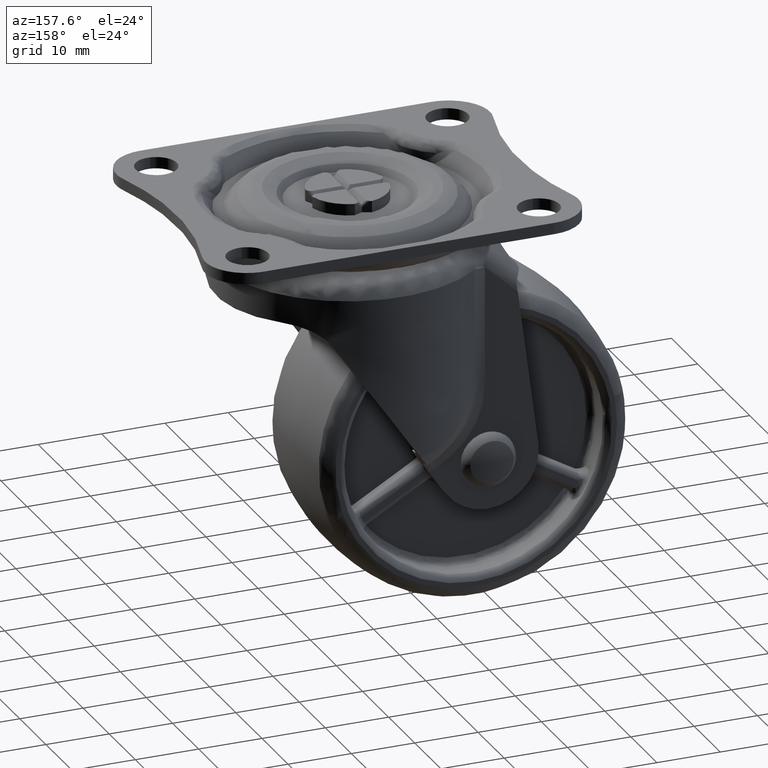
[diagram: clean part render]
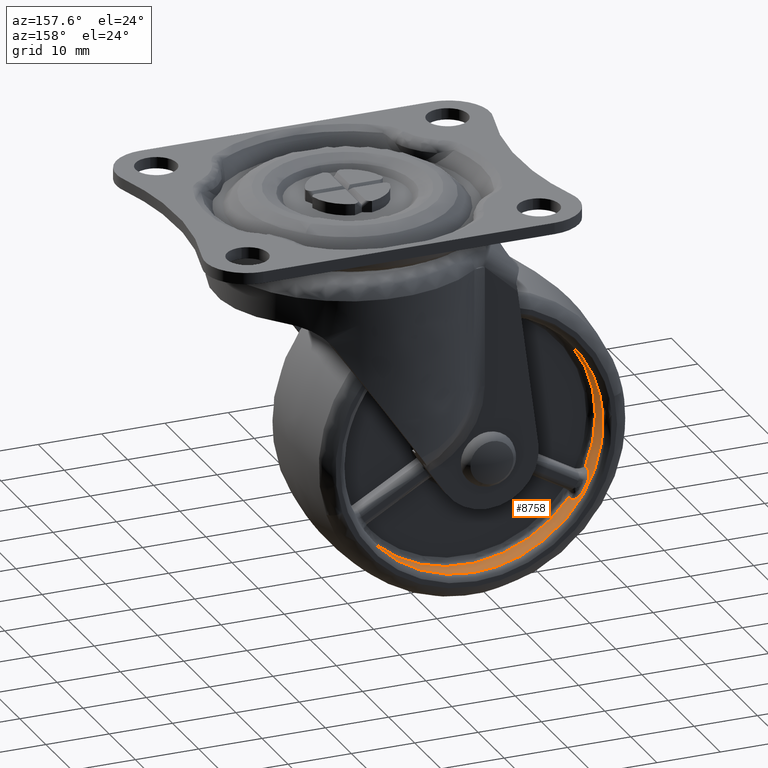
[diagram: same view with one face highlighted and labeled with its STEP entity id]
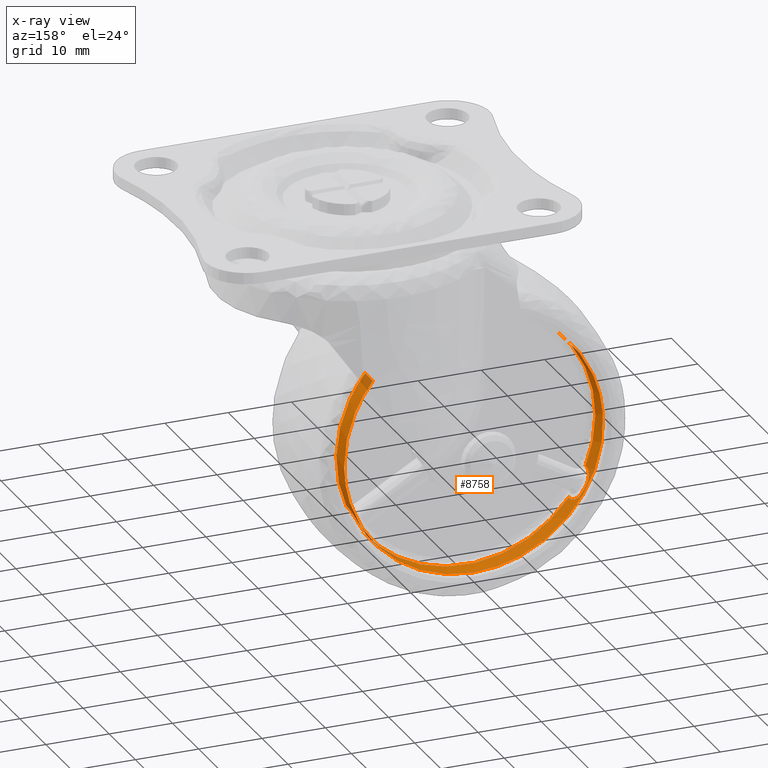
[diagram: x-ray of the same camera — body ghosted, the highlighted face saturated]
A machine part, auxiliary view. The second image highlights one B-rep face of the part: STEP entity #8758.
The next image is the same camera in x-ray: the body ghosted, the highlighted face saturated — about 3% of this face is hidden behind the body in this view.
In plain terms, the highlighted face is a freeform B-spline surface patch.
Its self-contained STEP definition (entity closure, byte-faithful):
#8419=CARTESIAN_POINT('',(-13.750354715929639,9.575000003047506,15.137050111765920));
#8420=CARTESIAN_POINT('',(-28.045080058926210,9.575000003047506,2.151855335921904));
#8421=CARTESIAN_POINT('',(-15.898687854300711,9.575000003047506,-12.862125229195669));
#8422=CARTESIAN_POINT('',(-3.036562625105042,9.575000003047506,-28.760813083496380));
#8423=CARTESIAN_POINT('',(12.862125229195669,9.575000003047506,-15.898687854300711));
#8424=CARTESIAN_POINT('',(28.760813083496380,9.575000003047506,-3.036562625105040));
#8425=CARTESIAN_POINT('',(15.898687854300711,9.575000003047506,12.862125229195669));
#8426=CARTESIAN_POINT('',(-13.750354715929639,6.423124999923812,15.137050111765920));
#8427=CARTESIAN_POINT('',(-28.045080058926210,6.423124999923812,2.151855335921904));
#8428=CARTESIAN_POINT('',(-15.898687854300711,6.423124999923811,-12.862125229195669));
#8429=CARTESIAN_POINT('',(-3.036562625105042,6.423124999923811,-28.760813083496380));
#8430=CARTESIAN_POINT('',(12.862125229195669,6.423124999923811,-15.898687854300711));
#8431=CARTESIAN_POINT('',(28.760813083496380,6.423124999923811,-3.036562625105040));
#8432=CARTESIAN_POINT('',(15.898687854300711,6.423124999923811,12.862125229195669));
#8440=(BOUNDED_SURFACE()B_SPLINE_SURFACE(2,1,((#8419,#8426),(#8420,#8427),(#8421,#8428),(#8422,#8429),(#8423,#8430),(#8424,#8431),(#8425,#8432)),.UNSPECIFIED.,.F.,.F.,.U.)B_SPLINE_SURFACE_WITH_KNOTS((3,2,2,3),(2,2),(0.0,32.527364216614480,66.410035275587902,100.292706334561300),(0.0,3.151875003123696),.UNSPECIFIED.)GEOMETRIC_REPRESENTATION_ITEM()RATIONAL_B_SPLINE_SURFACE(((0.977505800795127,0.977505800795127),(0.718822509939086,0.718822509939086),(1.0,1.0),(0.707106781186548,0.707106781186548),(1.0,1.0),(0.707106781186548,0.707106781186548),(1.0,1.0)))REPRESENTATION_ITEM('')SURFACE());
#8441=CARTESIAN_POINT('',(-13.750354581421581,9.500000000815927,15.137050233947690));
#8442=VERTEX_POINT('',#8441);
#8443=CARTESIAN_POINT('',(-20.400219027600329,9.500000002921276,1.426045064482339));
#8444=VERTEX_POINT('',#8443);
#8445=CARTESIAN_POINT('',(-13.750354581421583,9.500000000815929,15.137050233947692));
#8446=CARTESIAN_POINT('',(-19.827680723367575,9.500000001663574,9.616464216504003));
#8447=CARTESIAN_POINT('',(-20.400219027600333,9.500000002921276,1.426045064482339));
#8455=(BOUNDED_CURVE()B_SPLINE_CURVE(2,(#8445,#8446,#8447),.UNSPECIFIED.,.F.,.U.)B_SPLINE_CURVE_WITH_KNOTS((3,3),(0.617761002347248,0.737833686534608),.UNSPECIFIED.)CURVE()GEOMETRIC_REPRESENTATION_ITEM()RATIONAL_B_SPLINE_CURVE((0.854044542875899,0.845897838629195,0.972879876385952))REPRESENTATION_ITEM(''));
#8456=EDGE_CURVE('',#8442,#8444,#8455,.T.);
#8457=ORIENTED_EDGE('',*,*,#8456,.F.);
#8458=CARTESIAN_POINT('',(-13.750359244904329,6.499999999999999,15.137045997685201));
#8459=VERTEX_POINT('',#8458);
#8460=CARTESIAN_POINT('',(-13.750354581421581,9.500000000815927,15.137050233947690));
#8461=CARTESIAN_POINT('',(-13.750359244904329,6.499999999999999,15.137045997685201));
#8462=QUASI_UNIFORM_CURVE('',1,(#8460,#8461),.UNSPECIFIED.,.F.,.U.);
#8463=EDGE_CURVE('',#8442,#8459,#8462,.T.);
#8464=ORIENTED_EDGE('',*,*,#8463,.T.);
#8465=CARTESIAN_POINT('',(-18.877583458162349,6.500000000000000,-7.863802113489131));
#8466=VERTEX_POINT('',#8465);
#8467=CARTESIAN_POINT('',(-13.750359244904329,6.499999999999999,15.137045997685203));
#8468=CARTESIAN_POINT('',(-16.113755047082076,6.500000000000001,12.990158069697557));
#8469=CARTESIAN_POINT('',(-17.710217990778780,6.500000000000000,10.225004626849641));
#8470=CARTESIAN_POINT('',(-22.765403743665974,6.500000000000000,1.469170773002720));
#8471=CARTESIAN_POINT('',(-18.877583458162349,6.500000000000000,-7.863802113489129));
#8479=(BOUNDED_CURVE()B_SPLINE_CURVE(2,(#8467,#8468,#8469,#8470,#8471),.UNSPECIFIED.,.F.,.U.)B_SPLINE_CURVE_WITH_KNOTS((3,2,3),(0.330053571922314,0.500000000000000,1.0),.UNSPECIFIED.)CURVE()GEOMETRIC_REPRESENTATION_ITEM()RATIONAL_B_SPLINE_CURVE((0.953524053195267,0.964796664270254,1.0,0.896428138773078,1.0))REPRESENTATION_ITEM(''));
#8480=EDGE_CURVE('',#8459,#8466,#8479,.T.);
#8481=ORIENTED_EDGE('',*,*,#8480,.T.);
#8482=CARTESIAN_POINT('',(-18.877583458162349,7.0,-7.863802113489131));
#8483=VERTEX_POINT('',#8482);
#8484=CARTESIAN_POINT('',(-18.877583458162349,6.500000000000000,-7.863802113489131));
#8485=CARTESIAN_POINT('',(-18.877583458162349,7.0,-7.863802113489131));
#8486=QUASI_UNIFORM_CURVE('',1,(#8484,#8485),.UNSPECIFIED.,.F.,.U.);
#8487=EDGE_CURVE('',#8466,#8483,#8486,.T.);
#8488=ORIENTED_EDGE('',*,*,#8487,.T.);
#8489=CARTESIAN_POINT('',(-17.967223237728650,9.0,-9.766341691013269));
#8490=VERTEX_POINT('',#8489);
#8491=CARTESIAN_POINT('',(-18.877583458162349,7.0,-7.863802113489131));
#8492=CARTESIAN_POINT('',(-18.877583458162359,7.135772272717576,-7.863802113489134));
#8493=CARTESIAN_POINT('',(-18.872017891362290,7.269833924396749,-7.877201999931253));
#8494=CARTESIAN_POINT('',(-18.855318406736860,7.468398351319513,-7.917052236500394));
#8495=CARTESIAN_POINT('',(-18.848365306855829,7.533779858837181,-7.933606517860996));
#8496=CARTESIAN_POINT('',(-18.831934976528011,7.661157066372635,-7.972528592658308));
#8497=CARTESIAN_POINT('',(-18.812934796587790,7.785718099639228,-8.017373211709769));
#8498=CARTESIAN_POINT('',(-18.788793019796579,7.904784342977452,-8.073719168785493));
#8499=CARTESIAN_POINT('',(-18.761989795069269,8.021089509196456,-8.135811163423567));
#8500=CARTESIAN_POINT('',(-18.747161798886989,8.078151624270602,-8.169947165331168));
#8501=CARTESIAN_POINT('',(-18.699441603645379,8.241739541872439,-8.278871288023069));
#8502=CARTESIAN_POINT('',(-18.663250943261250,8.341485515768511,-8.360341747955154));
#8503=CARTESIAN_POINT('',(-18.602178424617069,8.477819381876483,-8.494935315359824));
#8504=CARTESIAN_POINT('',(-18.580681832231878,8.521032846619779,-8.541880614846891));
#8505=CARTESIAN_POINT('',(-18.535273647295860,8.602911981873792,-8.639970637032775));
#8506=CARTESIAN_POINT('',(-18.511708314628869,8.640949326009585,-8.690365570212041));
#8507=CARTESIAN_POINT('',(-18.438512921642111,8.746601296040968,-8.845157568846860));
#8508=CARTESIAN_POINT('',(-18.386361821651320,8.805904084122794,-8.953215040285514));
#8509=CARTESIAN_POINT('',(-18.302722484103619,8.878306587658496,-9.122326758752747));
#8510=CARTESIAN_POINT('',(-18.273822233023971,8.899706467147210,-9.180096202951555));
#8511=CARTESIAN_POINT('',(-18.215240258024899,8.936121941150745,-9.295793007701699));
#8512=CARTESIAN_POINT('',(-18.185451454775102,8.951255678828654,-9.353941860334631));
#8513=CARTESIAN_POINT('',(-18.094570400185301,8.987654191753530,-9.529238746864488));
#8514=CARTESIAN_POINT('',(-18.031970539033640,9.000000000000004,-9.647225521070366));
#8515=CARTESIAN_POINT('',(-17.967223237728650,9.0,-9.766341691013269));
#8516=B_SPLINE_CURVE_WITH_KNOTS('',3,(#8491,#8492,#8493,#8494,#8495,#8496,#8497,#8498,#8499,#8500,#8501,#8502,#8503,#8504,#8505,#8506,#8507,#8508,#8509,#8510,#8511,#8512,#8513,#8514,#8515),.UNSPECIFIED.,.F.,.U.,(4,2,2,1,2,2,2,2,2,2,2,2,4),(0.0,0.124999999999999,0.187499999999999,0.249999999999999,0.312499999999999,0.374999999999999,0.500000000000000,0.562500000000000,0.625000000000000,0.750000000000000,0.812500000000000,0.875000000000000,1.0),.UNSPECIFIED.);
#8517=EDGE_CURVE('',#8483,#8490,#8516,.T.);
#8518=ORIENTED_EDGE('',*,*,#8517,.T.);
#8519=CARTESIAN_POINT('',(-17.441516605756998,9.0,-10.676892777915439));
#8520=VERTEX_POINT('',#8519);
#8521=CARTESIAN_POINT('',(-17.967223237728660,9.0,-9.766341691013274));
#8522=CARTESIAN_POINT('',(-17.716077529603545,9.0,-10.228376621373496));
#8523=CARTESIAN_POINT('',(-17.441516605757020,9.0,-10.676892777915461));
#8531=(BOUNDED_CURVE()B_SPLINE_CURVE(2,(#8521,#8522,#8523),.UNSPECIFIED.,.F.,.U.)CURVE()GEOMETRIC_REPRESENTATION_ITEM()QUASI_UNIFORM_CURVE()RATIONAL_B_SPLINE_CURVE((1.0,0.999669522141302,1.0))REPRESENTATION_ITEM(''));
#8532=EDGE_CURVE('',#8490,#8520,#8531,.T.);
#8533=ORIENTED_EDGE('',*,*,#8532,.T.);
#8534=CARTESIAN_POINT('',(-16.249049916331199,7.0,-12.416558207352701));
#8535=VERTEX_POINT('',#8534);
#8536=CARTESIAN_POINT('',(-17.441516605756998,9.0,-10.676892777915439));
#8537=CARTESIAN_POINT('',(-17.370725969719309,9.000000000000004,-10.792534667336451));
#8538=CARTESIAN_POINT('',(-17.299486484840660,8.987650936607944,-10.906327549214691));
#8539=CARTESIAN_POINT('',(-17.192047864761228,8.950702390752683,-11.074314841255219));
#8540=CARTESIAN_POINT('',(-17.156137511680750,8.935258815261538,-11.129855088992031));
#8541=CARTESIAN_POINT('',(-17.085355323124869,8.898695642043579,-11.238209915472730));
#8542=CARTESIAN_POINT('',(-17.015307561772460,8.856368253515299,-11.344317804451959));
#8543=CARTESIAN_POINT('',(-16.946814675769851,8.802601106233652,-11.446031304845670));
#8544=CARTESIAN_POINT('',(-16.879176349354971,8.742996275430265,-11.545543125109850));
#8545=CARTESIAN_POINT('',(-16.845661481789790,8.710139932669158,-11.594375324950351));
#8546=CARTESIAN_POINT('',(-16.747420243209952,8.603308377317669,-11.736255460614901));
#8547=CARTESIAN_POINT('',(-16.685895005751458,8.522264153862670,-11.823414135040160));
#8548=CARTESIAN_POINT('',(-16.600023268346529,8.385997326013314,-11.943374173710790));
#8549=CARTESIAN_POINT('',(-16.572476174475369,8.338107922328330,-11.981552045395240));
#8550=CARTESIAN_POINT('',(-16.532905761608379,8.262410866875904,-12.036032225999330));
#8551=CARTESIAN_POINT('',(-16.519975476226740,8.236461085702930,-12.053771180472650));
#8552=CARTESIAN_POINT('',(-16.494974360694531,8.183758557946755,-12.087961376773020));
#8553=CARTESIAN_POINT('',(-16.482884340339169,8.156976075000971,-12.104439392540730));
#8554=CARTESIAN_POINT('',(-16.424490700989779,8.020930049409921,-12.183794920629730));
#8555=CARTESIAN_POINT('',(-16.384298002892240,7.905329537405959,-12.237661901982509));
#8556=CARTESIAN_POINT('',(-16.342844995678028,7.752095640480200,-12.292849503193869));
#8557=CARTESIAN_POINT('',(-16.334997550681489,7.721008129033955,-12.303273811767410));
#8558=CARTESIAN_POINT('',(-16.320221120925009,7.657927347104997,-12.322867930486209));
#8559=CARTESIAN_POINT('',(-16.313297529095070,7.625937090130941,-12.332030496106951));
#8560=CARTESIAN_POINT('',(-16.294179011133789,7.529783299147079,-12.357294095872509));
#8561=CARTESIAN_POINT('',(-16.283537009452640,7.465047353139132,-12.371304013497580));
#8562=CARTESIAN_POINT('',(-16.257871275554891,7.268973567051916,-12.405037727385819));
#8563=CARTESIAN_POINT('',(-16.249049916331199,7.135789323222138,-12.416558207352701));
#8564=CARTESIAN_POINT('',(-16.249049916331199,7.0,-12.416558207352701));
#8565=B_SPLINE_CURVE_WITH_KNOTS('',3,(#8536,#8537,#8538,#8539,#8540,#8541,#8542,#8543,#8544,#8545,#8546,#8547,#8548,#8549,#8550,#8551,#8552,#8553,#8554,#8555,#8556,#8557,#8558,#8559,#8560,#8561,#8562,#8563,#8564),.UNSPECIFIED.,.F.,.U.,(4,2,2,1,2,2,2,2,2,2,2,2,2,2,4),(0.0,0.124999999999999,0.187500000000000,0.250000000000000,0.312500000000001,0.375000000000001,0.500000000000004,0.562500000000005,0.593750000000006,0.625000000000007,0.750000000000008,0.781250000000007,0.812500000000006,0.875000000000004,1.0),.UNSPECIFIED.);
#8566=EDGE_CURVE('',#8520,#8535,#8565,.T.);
#8567=ORIENTED_EDGE('',*,*,#8566,.T.);
#8568=CARTESIAN_POINT('',(-16.249049916331199,6.500000000000000,-12.416558207352701));
#8569=VERTEX_POINT('',#8568);
#8570=CARTESIAN_POINT('',(-16.249049916331199,7.0,-12.416558207352701));
#8571=CARTESIAN_POINT('',(-16.249049916331199,6.500000000000000,-12.416558207352701));
#8572=QUASI_UNIFORM_CURVE('',1,(#8570,#8571),.UNSPECIFIED.,.F.,.U.);
#8573=EDGE_CURVE('',#8535,#8569,#8572,.T.);
#8574=ORIENTED_EDGE('',*,*,#8573,.T.);
#8575=CARTESIAN_POINT('',(16.249044129696500,6.500000000000000,-12.416565780084920));
#8576=VERTEX_POINT('',#8575);
#8577=CARTESIAN_POINT('',(-16.249049916331199,6.500000000000000,-12.416558207352709));
#8578=CARTESIAN_POINT('',(-10.110372190466643,6.500000000000000,-20.449998644073425));
#8579=CARTESIAN_POINT('',(-0.000004765275816,6.500000000000000,-20.450000999999439));
#8580=CARTESIAN_POINT('',(10.110362659915010,6.500000000000000,-20.450003355925464));
#8581=CARTESIAN_POINT('',(16.249044129696511,6.500000000000000,-12.416565780084930));
#8589=(BOUNDED_CURVE()B_SPLINE_CURVE(2,(#8577,#8578,#8579,#8580,#8581),.UNSPECIFIED.,.F.,.U.)B_SPLINE_CURVE_WITH_KNOTS((3,2,3),(0.0,0.500000000000000,1.0),.UNSPECIFIED.)CURVE()GEOMETRIC_REPRESENTATION_ITEM()RATIONAL_B_SPLINE_CURVE((1.0,0.896428138773078,1.0,0.896428138773078,1.0))REPRESENTATION_ITEM(''));
#8590=EDGE_CURVE('',#8569,#8576,#8589,.T.);
#8591=ORIENTED_EDGE('',*,*,#8590,.T.);
#8592=CARTESIAN_POINT('',(16.249044129696500,7.0,-12.416565780084920));
#8593=VERTEX_POINT('',#8592);
#8594=CARTESIAN_POINT('',(16.249044129696500,6.500000000000000,-12.416565780084920));
#8595=CARTESIAN_POINT('',(16.249044129696500,7.0,-12.416565780084920));
#8596=QUASI_UNIFORM_CURVE('',1,(#8594,#8595),.UNSPECIFIED.,.F.,.U.);
#8597=EDGE_CURVE('',#8576,#8593,#8596,.T.);
#8598=ORIENTED_EDGE('',*,*,#8597,.T.);
#8599=CARTESIAN_POINT('',(17.441511625320899,9.0,-10.676900913832480));
#8600=VERTEX_POINT('',#8599);
#8601=CARTESIAN_POINT('',(16.249044129696500,7.0,-12.416565780084920));
#8602=CARTESIAN_POINT('',(16.249044129696500,7.135772272717574,-12.416565780084920));
#8603=CARTESIAN_POINT('',(16.257865988363189,7.269833924396747,-12.405045914628561));
#8604=CARTESIAN_POINT('',(16.284027563266172,7.468398351319513,-12.370658618428260));
#8605=CARTESIAN_POINT('',(16.294887441525340,7.533779858837182,-12.356359916615940));
#8606=CARTESIAN_POINT('',(16.320379781903888,7.661157066372632,-12.322669795760810));
#8607=CARTESIAN_POINT('',(16.349716523794289,7.785717979134737,-12.283792691795011));
#8608=CARTESIAN_POINT('',(16.386442413087899,7.904784342977457,-12.234712477198830));
#8609=CARTESIAN_POINT('',(16.426814045452470,8.021089509196457,-12.180454206362599));
#8610=CARTESIAN_POINT('',(16.448962692196940,8.078151624270603,-12.150544784027730));
#8611=CARTESIAN_POINT('',(16.519433651912259,8.241739541872441,-12.054755821328991));
#8612=CARTESIAN_POINT('',(16.571893809679370,8.341485515768518,-11.982678560090550));
#8613=CARTESIAN_POINT('',(16.657918998915711,8.477819381876486,-11.862491423769271));
#8614=CARTESIAN_POINT('',(16.687826524667180,8.521032846619780,-11.820402178925351));
#8615=CARTESIAN_POINT('',(16.750070883269931,8.602911981873794,-11.732032526138079));
#8616=CARTESIAN_POINT('',(16.781931509291692,8.640949326009581,-11.686426882810199));
#8617=CARTESIAN_POINT('',(16.879387615918631,8.746601296040970,-11.545641813726270));
#8618=CARTESIAN_POINT('',(16.946892581257831,8.805904084122794,-11.446448900579620));
#8619=CARTESIAN_POINT('',(17.051527956754249,8.878306587658496,-11.289459250273991));
#8620=CARTESIAN_POINT('',(17.087107637453091,8.899706467147210,-11.235546176563870));
#8621=CARTESIAN_POINT('',(17.158013022003878,8.936121941150747,-11.126964295635741));
#8622=CARTESIAN_POINT('',(17.193477003960009,8.951255678828655,-11.072092008956600));
#8623=CARTESIAN_POINT('',(17.299848033604281,8.987654191753524,-10.905738263694181));
#8624=CARTESIAN_POINT('',(17.370727646801331,8.999999999999998,-10.792531806560540));
#8625=CARTESIAN_POINT('',(17.441511625320899,9.0,-10.676900913832480));
#8626=B_SPLINE_CURVE_WITH_KNOTS('',3,(#8601,#8602,#8603,#8604,#8605,#8606,#8607,#8608,#8609,#8610,#8611,#8612,#8613,#8614,#8615,#8616,#8617,#8618,#8619,#8620,#8621,#8622,#8623,#8624,#8625),.UNSPECIFIED.,.F.,.U.,(4,2,2,1,2,2,2,2,2,2,2,2,4),(0.0,0.125000000000002,0.187500000000003,0.250000000000004,0.312500000000005,0.375000000000005,0.500000000000006,0.562500000000005,0.625000000000005,0.750000000000005,0.812500000000003,0.875000000000002,1.0),.UNSPECIFIED.);
#8627=EDGE_CURVE('',#8593,#8600,#8626,.T.);
#8628=ORIENTED_EDGE('',*,*,#8627,.T.);
#8629=CARTESIAN_POINT('',(17.967218682035899,9.0,-9.766350072156000));
#8630=VERTEX_POINT('',#8629);
#8631=CARTESIAN_POINT('',(17.441511625320899,9.0,-10.676900913832490));
#8632=CARTESIAN_POINT('',(17.716072758386066,9.0,-10.228384885364591));
#8633=CARTESIAN_POINT('',(17.967218682035892,9.0,-9.766350072155989));
#8641=(BOUNDED_CURVE()B_SPLINE_CURVE(2,(#8631,#8632,#8633),.UNSPECIFIED.,.F.,.U.)CURVE()GEOMETRIC_REPRESENTATION_ITEM()QUASI_UNIFORM_CURVE()RATIONAL_B_SPLINE_CURVE((1.0,0.999669522141302,1.0))REPRESENTATION_ITEM(''));
#8642=EDGE_CURVE('',#8600,#8630,#8641,.T.);
#8643=ORIENTED_EDGE('',*,*,#8642,.T.);
#8644=CARTESIAN_POINT('',(18.877579793301202,7.0,-7.863810911227899));
#8645=VERTEX_POINT('',#8644);
#8646=CARTESIAN_POINT('',(17.967218682035899,9.0,-9.766350072156000));
#8647=CARTESIAN_POINT('',(18.031972177997279,9.000000000000002,-9.647222638286785));
#8648=CARTESIAN_POINT('',(18.094899962034329,8.987650936607942,-9.528630993690236));
#8649=CARTESIAN_POINT('',(18.186661914414650,8.950702390752680,-9.351592773333634));
#8650=CARTESIAN_POINT('',(18.216806003346981,8.935258815261532,-9.292723371438671));
#8651=CARTESIAN_POINT('',(18.275252941423989,8.898695642043576,-9.177246784773471));
#8652=CARTESIAN_POINT('',(18.332121131757908,8.856368431732333,-9.063529593099236));
#8653=CARTESIAN_POINT('',(18.385961220393209,8.802601106233649,-8.953356370020817));
#8654=CARTESIAN_POINT('',(18.438321821511380,8.742996275430260,-8.845023950943972));
#8655=CARTESIAN_POINT('',(18.463854313313341,8.710139932669154,-8.791583124307808));
#8656=CARTESIAN_POINT('',(18.537605495801319,8.603308377317664,-8.635563648166139));
#8657=CARTESIAN_POINT('',(18.582324503284511,8.522264153862670,-8.538701892340596));
#8658=CARTESIAN_POINT('',(18.643277075509779,8.385997326013314,-8.404354766945502));
#8659=CARTESIAN_POINT('',(18.662566535315381,8.338107922328328,-8.361409348010424));
#8660=CARTESIAN_POINT('',(18.689962549287770,8.262410866875904,-8.299900274927326));
#8661=CARTESIAN_POINT('',(18.698859791807429,8.236461085702921,-8.279832842071983));
#8662=CARTESIAN_POINT('',(18.715968812597819,8.183758557946748,-8.241086142747953));
#8663=CARTESIAN_POINT('',(18.724194182678929,8.156976075000966,-8.222376870104082));
#8664=CARTESIAN_POINT('',(18.763721266260038,8.020930049409918,-8.132128730963581));
#8665=CARTESIAN_POINT('',(18.790275091487970,7.905329537405957,-8.070387342688090));
#8666=CARTESIAN_POINT('',(18.817342452503819,7.752095640480199,-8.006894184771648));
#8667=CARTESIAN_POINT('',(18.822446446047120,7.721008129033953,-7.994885943763070));
#8668=CARTESIAN_POINT('',(18.832027235744128,7.657927347104993,-7.972292120857323));
#8669=CARTESIAN_POINT('',(18.836500454420559,7.625937090130941,-7.961714831636794));
#8670=CARTESIAN_POINT('',(18.848820114627930,7.529783299147076,-7.932525909516827));
#8671=CARTESIAN_POINT('',(18.855632058355610,7.465047353139132,-7.916304706901300));
#8672=CARTESIAN_POINT('',(18.872013444597929,7.268973567051916,-7.877210672394964));
#8673=CARTESIAN_POINT('',(18.877579793301202,7.135789323222134,-7.863810911227896));
#8674=CARTESIAN_POINT('',(18.877579793301202,7.0,-7.863810911227899));
#8675=B_SPLINE_CURVE_WITH_KNOTS('',3,(#8646,#8647,#8648,#8649,#8650,#8651,#8652,#8653,#8654,#8655,#8656,#8657,#8658,#8659,#8660,#8661,#8662,#8663,#8664,#8665,#8666,#8667,#8668,#8669,#8670,#8671,#8672,#8673,#8674),.UNSPECIFIED.,.F.,.U.,(4,2,2,1,2,2,2,2,2,2,2,2,2,2,4),(0.0,0.124999999999998,0.187499999999996,0.249999999999995,0.312499999999994,0.374999999999992,0.499999999999989,0.562499999999988,0.593749999999988,0.624999999999988,0.749999999999990,0.781249999999991,0.812499999999992,0.874999999999995,1.0),.UNSPECIFIED.);
#8676=EDGE_CURVE('',#8630,#8645,#8675,.T.);
#8677=ORIENTED_EDGE('',*,*,#8676,.T.);
#8678=CARTESIAN_POINT('',(18.877579793301202,6.500000000000000,-7.863810911227899));
#8679=VERTEX_POINT('',#8678);
#8680=CARTESIAN_POINT('',(18.877579793301202,7.0,-7.863810911227899));
#8681=CARTESIAN_POINT('',(18.877579793301202,6.500000000000000,-7.863810911227899));
#8682=QUASI_UNIFORM_CURVE('',1,(#8680,#8681),.UNSPECIFIED.,.F.,.U.);
#8683=EDGE_CURVE('',#8645,#8679,#8682,.T.);
#8684=ORIENTED_EDGE('',*,*,#8683,.T.);
#8685=CARTESIAN_POINT('',(15.898688046611900,6.500000000000000,12.862124991482590));
#8686=VERTEX_POINT('',#8685);
#8687=CARTESIAN_POINT('',(18.877579793301209,6.500000000000000,-7.863810911227901));
#8688=CARTESIAN_POINT('',(22.765404428358238,6.500000000000001,1.469160163376857));
#8689=CARTESIAN_POINT('',(17.710222756054609,6.500000000000000,10.224996373149800));
#8690=CARTESIAN_POINT('',(16.907916839882660,6.500000000000000,11.614631730988906));
#8691=CARTESIAN_POINT('',(15.898688046611896,6.500000000000000,12.862124991482586));
#8699=(BOUNDED_CURVE()B_SPLINE_CURVE(2,(#8687,#8688,#8689,#8690,#8691),.UNSPECIFIED.,.F.,.U.)B_SPLINE_CURVE_WITH_KNOTS((3,2,3),(0.0,0.500000000000000,0.586929304451149),.UNSPECIFIED.)CURVE()GEOMETRIC_REPRESENTATION_ITEM()RATIONAL_B_SPLINE_CURVE((1.0,0.896428138773078,1.0,0.981993140285665,0.970247575732597))REPRESENTATION_ITEM(''));
#8700=EDGE_CURVE('',#8679,#8686,#8699,.T.);
#8701=ORIENTED_EDGE('',*,*,#8700,.T.);
#8702=CARTESIAN_POINT('',(15.898688552261310,9.500000000000007,12.862124366456539));
#8703=VERTEX_POINT('',#8702);
#8704=CARTESIAN_POINT('',(15.898688552261310,9.500000000000007,12.862124366456539));
#8705=CARTESIAN_POINT('',(15.898688046611900,6.500000000000000,12.862124991482590));
#8706=QUASI_UNIFORM_CURVE('',1,(#8704,#8705),.UNSPECIFIED.,.F.,.U.);
#8707=EDGE_CURVE('',#8703,#8686,#8706,.T.);
#8708=ORIENTED_EDGE('',*,*,#8707,.F.);
#8709=CARTESIAN_POINT('',(20.448386353887809,9.500000002973177,-0.256975528282259));
#8710=VERTEX_POINT('',#8709);
#8711=CARTESIAN_POINT('',(20.448386353887805,9.500000002973177,-0.256975528282259));
#8712=CARTESIAN_POINT('',(20.450000999999993,9.499999999999998,-0.128492836819083));
#8713=CARTESIAN_POINT('',(20.450001000000000,9.500000000000000,1.224606E-015));
#8714=CARTESIAN_POINT('',(20.450000999999997,9.500000000000000,7.236311938508313));
#8715=CARTESIAN_POINT('',(15.898688552261330,9.500000000000000,12.862124366456559));
#8723=(BOUNDED_CURVE()B_SPLINE_CURVE(2,(#8711,#8712,#8713,#8714,#8715),.UNSPECIFIED.,.F.,.U.)B_SPLINE_CURVE_WITH_KNOTS((3,2,3),(0.247784295919980,0.250000000000000,0.359113370906853),.UNSPECIFIED.)CURVE()GEOMETRIC_REPRESENTATION_ITEM()RATIONAL_B_SPLINE_CURVE((0.994854295639988,0.997404141200259,1.0,0.872165734318022,0.855918889803748))REPRESENTATION_ITEM(''));
#8724=EDGE_CURVE('',#8710,#8703,#8723,.T.);
#8725=ORIENTED_EDGE('',*,*,#8724,.F.);
#8726=CARTESIAN_POINT('',(0.0,9.500000000000000,-20.450001000000000));
#8727=VERTEX_POINT('',#8726);
#8728=CARTESIAN_POINT('',(0.0,9.500000000000000,-20.450001000000000));
#8729=CARTESIAN_POINT('',(20.194619953915691,9.500000000000002,-20.450001000000011));
#8730=CARTESIAN_POINT('',(20.448386353887802,9.500000002973177,-0.256975528282259));
#8738=(BOUNDED_CURVE()B_SPLINE_CURVE(2,(#8728,#8729,#8730),.UNSPECIFIED.,.F.,.U.)B_SPLINE_CURVE_WITH_KNOTS((3,3),(0.0,0.247784295919980),.UNSPECIFIED.)CURVE()GEOMETRIC_REPRESENTATION_ITEM()RATIONAL_B_SPLINE_CURVE((1.0,0.709702639986289,0.994854295639988))REPRESENTATION_ITEM(''));
#8739=EDGE_CURVE('',#8727,#8710,#8738,.T.);
#8740=ORIENTED_EDGE('',*,*,#8739,.F.);
#8741=CARTESIAN_POINT('',(-20.400219027600336,9.500000002921276,1.426045064482339));
#8742=CARTESIAN_POINT('',(-20.450000999999997,9.499999999999998,0.713891454578379));
#8743=CARTESIAN_POINT('',(-20.450001000000000,9.500000000000000,1.224606E-015));
#8744=CARTESIAN_POINT('',(-20.450001000000004,9.500000000000000,-20.450001000000004));
#8745=CARTESIAN_POINT('',(0.0,9.500000000000000,-20.450001000000000));
#8753=(BOUNDED_CURVE()B_SPLINE_CURVE(2,(#8741,#8742,#8743,#8744,#8745),.UNSPECIFIED.,.F.,.U.)B_SPLINE_CURVE_WITH_KNOTS((3,2,3),(0.737833686534607,0.750000000000000,1.0),.UNSPECIFIED.)CURVE()GEOMETRIC_REPRESENTATION_ITEM()RATIONAL_B_SPLINE_CURVE((0.972879876385951,0.985746277152110,1.0,0.707106781186547,1.0))REPRESENTATION_ITEM(''));
#8754=EDGE_CURVE('',#8444,#8727,#8753,.T.);
#8755=ORIENTED_EDGE('',*,*,#8754,.F.);
#8756=EDGE_LOOP('',(#8457,#8464,#8481,#8488,#8518,#8533,#8567,#8574,#8591,#8598,#8628,#8643,#8677,#8684,#8701,#8708,#8725,#8740,#8755));
#8757=FACE_OUTER_BOUND('',#8756,.T.);
#8758=ADVANCED_FACE('',(#8757),#8440,.F.);